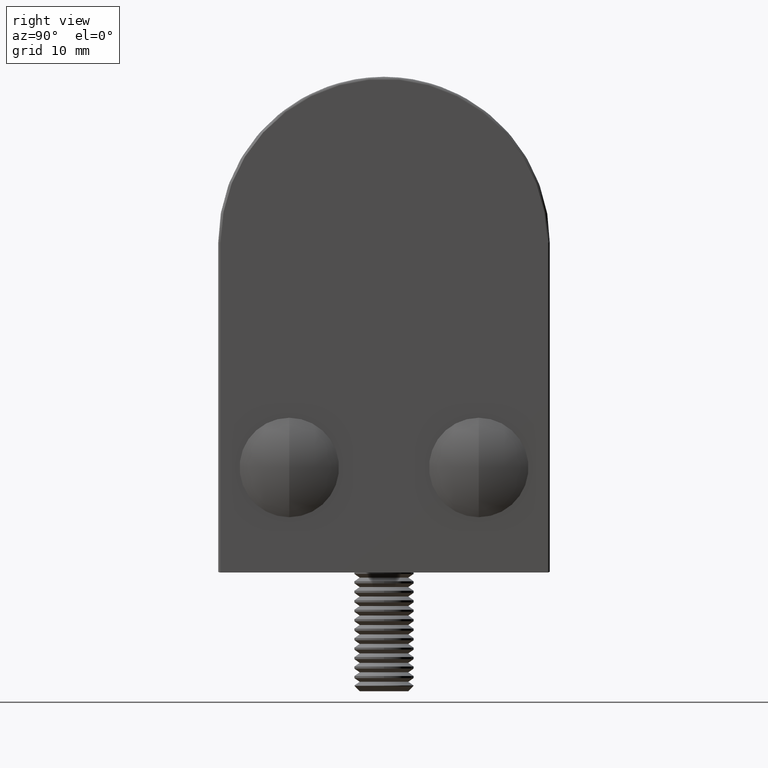
[diagram: clean part render]
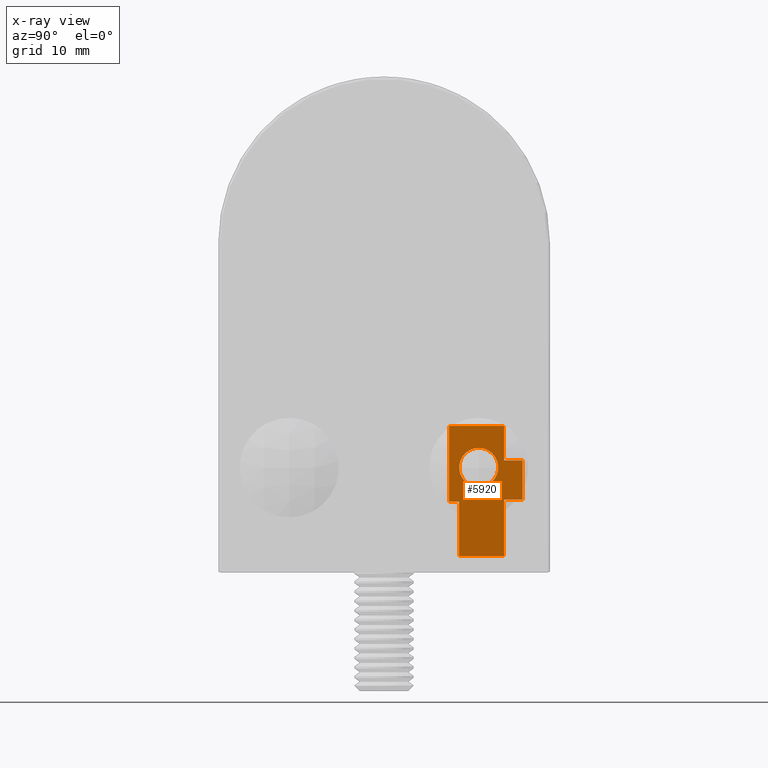
[diagram: x-ray — body ghosted, one internal face saturated and labeled with its STEP entity id]
A machine part, right view, then the same camera in x-ray: the body is ghosted and one INTERNAL B-rep face — a face not visible from any outside direction — is saturated and labeled: STEP entity #5920.
In plain terms, the highlighted planar face has unit normal (1, 0, 0).
Its self-contained STEP definition (entity closure, byte-faithful):
#995 = VECTOR ( 'NONE', #1580, 1000.000000000000000 ) ;
#1580 = DIRECTION ( 'NONE',  ( 0.0000000000000000000, -1.000000000000000000, 0.0000000000000000000 ) ) ;
#1866 = CARTESIAN_POINT ( 'NONE',  ( 13.29999999999999900, 6.349999999999997900, 4.099999999999993400 ) ) ;
#2290 = VERTEX_POINT ( 'NONE', #46656 ) ;
#2570 = DIRECTION ( 'NONE',  ( 0.0000000000000000000, 0.0000000000000000000, -1.000000000000000000 ) ) ;
#3014 = ORIENTED_EDGE ( 'NONE', *, *, #20839, .T. ) ;
#3017 = CIRCLE ( 'NONE', #5396, 1.649999999999998600 ) ;
#3331 = EDGE_LOOP ( 'NONE', ( #6979, #25688, #43411, #48821, #34149, #30251, #13163, #13120, #3014, #29311, #14661 ) ) ;
#5396 = AXIS2_PLACEMENT_3D ( 'NONE', #31096, #35389, #21970 ) ;
#5599 = ORIENTED_EDGE ( 'NONE', *, *, #8921, .F. ) ;
#5920 = ADVANCED_FACE ( 'NONE', ( #14353, #36611 ), #18637, .T. ) ;
#6979 = ORIENTED_EDGE ( 'NONE', *, *, #47030, .F. ) ;
#7135 = VECTOR ( 'NONE', #16794, 1000.000000000000000 ) ;
#7666 = CARTESIAN_POINT ( 'NONE',  ( 13.29999999999999900, 10.14999999999999900, 7.599999999999997000 ) ) ;
#7865 = CARTESIAN_POINT ( 'NONE',  ( 13.29999999999999900, 11.70000000000000300, 4.299999999999996300 ) ) ;
#8008 = VERTEX_POINT ( 'NONE', #33706 ) ;
#8906 = VECTOR ( 'NONE', #47095, 1000.000000000000000 ) ;
#8921 = EDGE_CURVE ( 'NONE', #12953, #13497, #3017, .T. ) ;
#9036 = VECTOR ( 'NONE', #45784, 1000.000000000000000 ) ;
#9417 = CARTESIAN_POINT ( 'NONE',  ( 13.29999999999999900, 5.499999999999999100, 10.49999999999999600 ) ) ;
#10163 = CARTESIAN_POINT ( 'NONE',  ( 13.29999999999999900, 5.499999999999999100, 4.099999999999997000 ) ) ;
#10976 = VERTEX_POINT ( 'NONE', #30764 ) ;
#11989 = EDGE_CURVE ( 'NONE', #39429, #36360, #33428, .T. ) ;
#12087 = LINE ( 'NONE', #10163, #52385 ) ;
#12648 = AXIS2_PLACEMENT_3D ( 'NONE', #37428, #41928, #23644 ) ;
#12953 = VERTEX_POINT ( 'NONE', #26054 ) ;
#13120 = ORIENTED_EDGE ( 'NONE', *, *, #11989, .T. ) ;
#13163 = ORIENTED_EDGE ( 'NONE', *, *, #34367, .T. ) ;
#13382 = EDGE_CURVE ( 'NONE', #39317, #16233, #32634, .T. ) ;
#13428 = DIRECTION ( 'NONE',  ( -0.0000000000000000000, -0.0000000000000000000, 1.000000000000000000 ) ) ;
#13434 = VERTEX_POINT ( 'NONE', #46161 ) ;
#13497 = VERTEX_POINT ( 'NONE', #20098 ) ;
#14353 = FACE_OUTER_BOUND ( 'NONE', #3331, .T. ) ;
#14661 = ORIENTED_EDGE ( 'NONE', *, *, #13382, .T. ) ;
#16233 = VERTEX_POINT ( 'NONE', #33592 ) ;
#16794 = DIRECTION ( 'NONE',  ( 0.0000000000000000000, -1.000000000000000000, 0.0000000000000000000 ) ) ;
#16990 = CARTESIAN_POINT ( 'NONE',  ( 13.29999999999999900, -13.99999999999999500, -0.5050730854153535600 ) ) ;
#18152 = DIRECTION ( 'NONE',  ( -0.0000000000000000000, -0.0000000000000000000, 1.000000000000000000 ) ) ;
#18637 = PLANE ( 'NONE',  #33548 ) ;
#20098 = CARTESIAN_POINT ( 'NONE',  ( 13.29999999999999900, 8.000000000000000000, 8.649999999999996800 ) ) ;
#20839 = EDGE_CURVE ( 'NONE', #36360, #2290, #12087, .T. ) ;
#21604 = VECTOR ( 'NONE', #2570, 1000.000000000000000 ) ;
#21970 = DIRECTION ( 'NONE',  ( 0.0000000000000000000, 0.0000000000000000000, -1.000000000000000000 ) ) ;
#22237 = EDGE_LOOP ( 'NONE', ( #5599, #35941 ) ) ;
#22563 = EDGE_CURVE ( 'NONE', #45315, #13434, #27889, .T. ) ;
#23644 = DIRECTION ( 'NONE',  ( 0.0000000000000000000, 0.0000000000000000000, -1.000000000000000000 ) ) ;
#25688 = ORIENTED_EDGE ( 'NONE', *, *, #47172, .T. ) ;
#25755 = CARTESIAN_POINT ( 'NONE',  ( 13.29999999999999900, 10.14999999999999900, -0.5050730854153535600 ) ) ;
#25841 = DIRECTION ( 'NONE',  ( -0.0000000000000000000, -0.0000000000000000000, 1.000000000000000000 ) ) ;
#26054 = CARTESIAN_POINT ( 'NONE',  ( 13.29999999999999900, 8.000000000000000000, 5.349999999999998800 ) ) ;
#27889 = LINE ( 'NONE', #56793, #54321 ) ;
#28221 = CARTESIAN_POINT ( 'NONE',  ( 13.29999999999999900, 5.499999999999999100, 10.49999999999999600 ) ) ;
#28662 = CARTESIAN_POINT ( 'NONE',  ( 13.29999999999999900, 5.499999999999998200, 4.099999999999993400 ) ) ;
#29311 = ORIENTED_EDGE ( 'NONE', *, *, #42769, .T. ) ;
#30251 = ORIENTED_EDGE ( 'NONE', *, *, #22563, .T. ) ;
#30413 = EDGE_CURVE ( 'NONE', #13497, #12953, #39486, .T. ) ;
#30609 = VERTEX_POINT ( 'NONE', #25755 ) ;
#30764 = CARTESIAN_POINT ( 'NONE',  ( 13.29999999999999900, 10.14999999999999900, 4.299999999999996300 ) ) ;
#30934 = EDGE_CURVE ( 'NONE', #10976, #48342, #33184, .T. ) ;
#31096 = CARTESIAN_POINT ( 'NONE',  ( 13.29999999999999900, 8.000000000000000000, 6.999999999999997300 ) ) ;
#31444 = DIRECTION ( 'NONE',  ( 1.000000000000000000, -0.0000000000000000000, 0.0000000000000000000 ) ) ;
#31474 = CARTESIAN_POINT ( 'NONE',  ( 13.29999999999999900, 11.70000000000000300, 7.599999999999997000 ) ) ;
#32634 = LINE ( 'NONE', #1866, #9036 ) ;
#32672 = DIRECTION ( 'NONE',  ( 0.0000000000000000000, 1.000000000000000000, -4.081702296416020700E-015 ) ) ;
#33184 = LINE ( 'NONE', #7865, #8906 ) ;
#33428 = LINE ( 'NONE', #28221, #21604 ) ;
#33529 = LINE ( 'NONE', #16990, #7135 ) ;
#33548 = AXIS2_PLACEMENT_3D ( 'NONE', #40376, #31444, #36484 ) ;
#33592 = CARTESIAN_POINT ( 'NONE',  ( 13.29999999999999900, 6.350000000000011200, -0.5050730854153535600 ) ) ;
#33706 = CARTESIAN_POINT ( 'NONE',  ( 13.29999999999999900, 11.70000000000000300, 7.599999999999997000 ) ) ;
#34149 = ORIENTED_EDGE ( 'NONE', *, *, #41193, .T. ) ;
#34367 = EDGE_CURVE ( 'NONE', #13434, #39429, #46139, .T. ) ;
#35389 = DIRECTION ( 'NONE',  ( 1.000000000000000000, -0.0000000000000000000, -0.0000000000000000000 ) ) ;
#35941 = ORIENTED_EDGE ( 'NONE', *, *, #30413, .F. ) ;
#36360 = VERTEX_POINT ( 'NONE', #28662 ) ;
#36484 = DIRECTION ( 'NONE',  ( 0.0000000000000000000, 0.0000000000000000000, -1.000000000000000000 ) ) ;
#36611 = FACE_BOUND ( 'NONE', #22237, .T. ) ;
#37428 = CARTESIAN_POINT ( 'NONE',  ( 13.29999999999999900, 8.000000000000000000, 6.999999999999997300 ) ) ;
#37684 = DIRECTION ( 'NONE',  ( -0.0000000000000000000, -1.000000000000000000, -0.0000000000000000000 ) ) ;
#37863 = DIRECTION ( 'NONE',  ( 0.0000000000000000000, 2.538619720941671800E-015, -1.000000000000000000 ) ) ;
#38382 = CARTESIAN_POINT ( 'NONE',  ( 13.29999999999999900, 11.70000000000000300, 4.299999999999996300 ) ) ;
#39317 = VERTEX_POINT ( 'NONE', #39715 ) ;
#39429 = VERTEX_POINT ( 'NONE', #9417 ) ;
#39486 = CIRCLE ( 'NONE', #12648, 1.649999999999998600 ) ;
#39715 = CARTESIAN_POINT ( 'NONE',  ( 13.29999999999999900, 6.349999999999997900, 1.599999999999995400 ) ) ;
#40376 = CARTESIAN_POINT ( 'NONE',  ( 13.29999999999999900, 0.0000000000000000000, 0.0000000000000000000 ) ) ;
#41193 = EDGE_CURVE ( 'NONE', #8008, #45315, #48088, .T. ) ;
#41928 = DIRECTION ( 'NONE',  ( 1.000000000000000000, -0.0000000000000000000, -0.0000000000000000000 ) ) ;
#42490 = EDGE_CURVE ( 'NONE', #48342, #8008, #53691, .T. ) ;
#42519 = VECTOR ( 'NONE', #13428, 1000.000000000000000 ) ;
#42769 = EDGE_CURVE ( 'NONE', #2290, #39317, #56413, .T. ) ;
#43411 = ORIENTED_EDGE ( 'NONE', *, *, #30934, .T. ) ;
#44735 = CARTESIAN_POINT ( 'NONE',  ( 13.29999999999999900, 10.14999999999999900, 7.599999999999997000 ) ) ;
#45315 = VERTEX_POINT ( 'NONE', #7666 ) ;
#45784 = DIRECTION ( 'NONE',  ( 0.0000000000000000000, 2.538619720941671800E-015, -1.000000000000000000 ) ) ;
#46139 = LINE ( 'NONE', #50734, #995 ) ;
#46161 = CARTESIAN_POINT ( 'NONE',  ( 13.29999999999999900, 10.14999999999999900, 10.49999999999999600 ) ) ;
#46656 = CARTESIAN_POINT ( 'NONE',  ( 13.29999999999999900, 6.349999999999997900, 4.099999999999993400 ) ) ;
#47030 = EDGE_CURVE ( 'NONE', #30609, #16233, #33529, .T. ) ;
#47095 = DIRECTION ( 'NONE',  ( -0.0000000000000000000, 1.000000000000000000, -0.0000000000000000000 ) ) ;
#47172 = EDGE_CURVE ( 'NONE', #30609, #10976, #56530, .T. ) ;
#48088 = LINE ( 'NONE', #44735, #53683 ) ;
#48153 = VECTOR ( 'NONE', #18152, 1000.000000000000000 ) ;
#48342 = VERTEX_POINT ( 'NONE', #38382 ) ;
#48821 = ORIENTED_EDGE ( 'NONE', *, *, #42490, .T. ) ;
#50734 = CARTESIAN_POINT ( 'NONE',  ( 13.29999999999999900, 10.14999999999999900, 10.49999999999999600 ) ) ;
#52237 = VECTOR ( 'NONE', #37863, 1000.000000000000000 ) ;
#52385 = VECTOR ( 'NONE', #32672, 1000.000000000000000 ) ;
#53328 = CARTESIAN_POINT ( 'NONE',  ( 13.29999999999999900, 10.14999999999999900, 4.299999999999996300 ) ) ;
#53683 = VECTOR ( 'NONE', #37684, 1000.000000000000000 ) ;
#53691 = LINE ( 'NONE', #31474, #42519 ) ;
#54321 = VECTOR ( 'NONE', #25841, 1000.000000000000000 ) ;
#56174 = CARTESIAN_POINT ( 'NONE',  ( 13.29999999999999900, 6.349999999999997900, 4.099999999999993400 ) ) ;
#56413 = LINE ( 'NONE', #56174, #52237 ) ;
#56530 = LINE ( 'NONE', #53328, #48153 ) ;
#56793 = CARTESIAN_POINT ( 'NONE',  ( 13.29999999999999900, 10.14999999999999900, 10.49999999999999600 ) ) ;